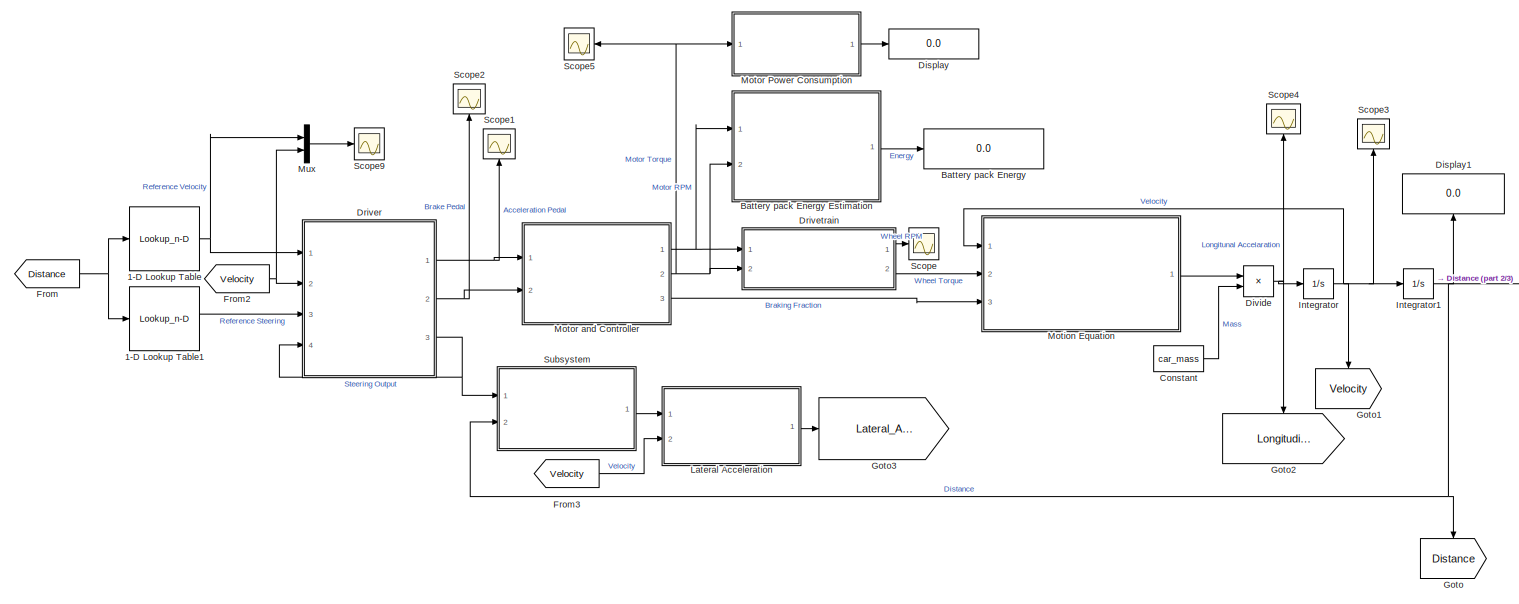
[diagram: root canvas - part 1/3, full width, top band]
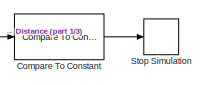
[diagram: root canvas - part 2/3, top right region]
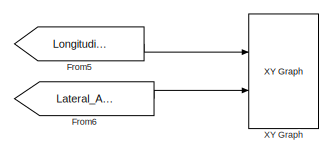
[diagram: root canvas - part 3/3, bottom left region]
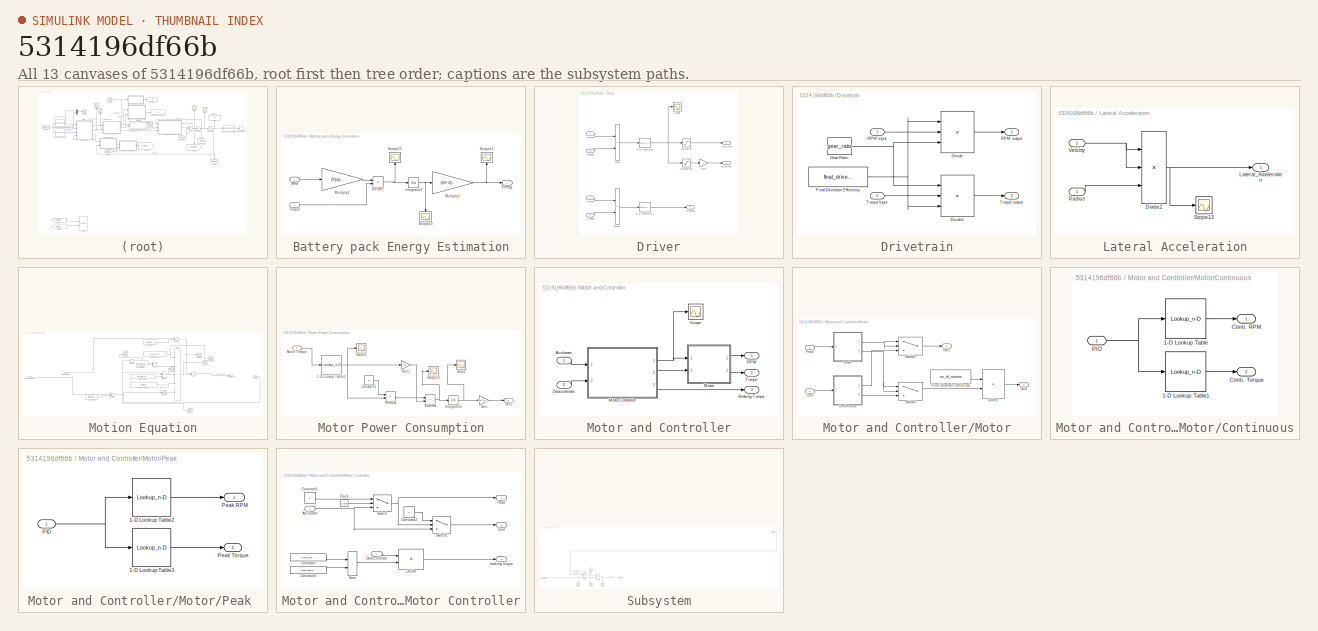
[diagram: thumbnail index - all 13 canvases of the model, root first then tree order]
MODEL slx_5314196df66b
KIND model
CONFIG AbsTol = auto
CONFIG EnableMultiTasking = off
CONFIG FixedStep = 1
CONFIG MaxStep = auto
CONFIG MinStep = auto
CONFIG RelTol = 1e-4
CONFIG SampleTimeConstraint = Unconstrained
CONFIG SolverName = ode45
CONFIG StartTime = 0
CONFIG StopTime = 2500
BLOCK [Lookup_n-D] 1-D Lookup Table
  BreakpointsForDimension1 = distance(1:2:x_leng*no_laps)
  InputPortMap = u0
  InternalRulePriority = Speed
  NumberOfTableDimensions = 1
  Ports = [1, 1]
  RndMeth = Simplest
  Table = achievable_velocity
BLOCK [Lookup_n-D] 1-D Lookup Table1
  BreakpointsForDimension1 = distance(1:x_leng*no_laps)
  InputPortMap = u0
  InternalRulePriority = Speed
  NumberOfTableDimensions = 1
  Ports = [1, 1]
  RndMeth = Simplest
  Table = reference_steering_angle
BLOCK [Display] Battery pack Energy
  Decimation = 1
  Ports = [1]
BLOCK [SubSystem] Battery pack Energy Estimation
  Ports = [2, 1]
  RequestExecContextInheritance = off
BLOCK [Product] Battery pack Energy Estimation/Divide1
  Inputs = **
  Ports = [2, 1]
BLOCK [Outport] Battery pack Energy Estimation/Energy
BLOCK [Integrator] Battery pack Energy Estimation/Integrator2
  Ports = [1, 1]
BLOCK [Gain] Battery pack Energy Estimation/Multiply1
  Gain = (10^-6)/3.6
BLOCK [Gain] Battery pack Energy Estimation/Multiply2
  Gain = (2*pi())/(60)
BLOCK [Inport] Battery pack Energy Estimation/RPM
BLOCK [Scope] Battery pack Energy Estimation/Scope10
  Floating = off
  NameLocation = left
  NumInputPorts = 1
  Ports = [1]
  ScopeSpecificationString = Simulink.scopes.TimeScopeBlockCfg('CurrentConfiguration', extmgr.ConfigurationSet(extmgr.Configuration('Core','General UI',true),extmgr.Configuration('Core','Source UI',true),extmgr.Configuration('Sources','WiredSimulink',true,'DataLoggingVariableName','ScopeData1'),extmgr.Configuration('Visuals','Time Domain',true,'SerializedDisplays',{struct('MinYLimReal','-32543.06706','MaxYLimReal','1337336.17...<+1477ch>
BLOCK [Scope] Battery pack Energy Estimation/Scope11
  Floating = off
  NameLocation = right
  NumInputPorts = 1
  Ports = [1]
  ScopeSpecificationString = Simulink.scopes.TimeScopeBlockCfg('CurrentConfiguration', extmgr.ConfigurationSet(extmgr.Configuration('Core','General UI',true),extmgr.Configuration('Core','Source UI',true),extmgr.Configuration('Sources','WiredSimulink',true,'DataLoggingVariableName','ScopeData2'),extmgr.Configuration('Visuals','Time Domain',true,'SerializedDisplays',{struct('MinYLimReal','-6143.69467','MaxYLimReal','55293.252',...<+1480ch>
BLOCK [Scope] Battery pack Energy Estimation/Scope12
  Floating = off
  NameLocation = right
  NumInputPorts = 1
  Ports = [1]
  ScopeSpecificationString = Simulink.scopes.TimeScopeBlockCfg('CurrentConfiguration', extmgr.ConfigurationSet(extmgr.Configuration('Core','General UI',true),extmgr.Configuration('Core','Source UI',true),extmgr.Configuration('Sources','WiredSimulink',true,'DataLoggingVariableName','ScopeData1'),extmgr.Configuration('Visuals','Time Domain',true,'SerializedDisplays',{struct('MinYLimReal','-0.22951','MaxYLimReal','8.06915','YLab...<+1414ch>
BLOCK [Inport] Battery pack Energy Estimation/Torque
  Port = 2
BLOCK [Reference] Compare To Constant  REF=simulink/Logic and Bit
Operations/Compare
To Constant
  Ports = [1, 1]
  SourceBlock = simulink/Logic and Bit\nOperations/Compare\nTo Constant
  SourceProductBaseCode = SL
  SourceType = Compare To Constant
BLOCK [Constant] Constant
  Value = car_mass
BLOCK [Display] Display
  Decimation = 1
  Ports = [1]
BLOCK [Display] Display1
  Decimation = 5
  NameLocation = right
  Ports = [1]
BLOCK [Product] Divide
  Inputs = */
  Ports = [2, 1]
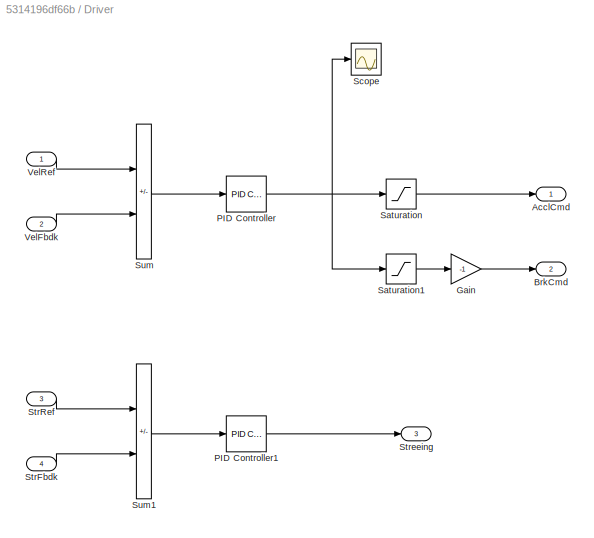
BLOCK [SubSystem] Driver
  Ports = [4, 3]
  RequestExecContextInheritance = off
BLOCK [Outport] Driver/AcclCmd
BLOCK [Outport] Driver/BrkCmd
  Port = 2
BLOCK [Gain] Driver/Gain
  Gain = -1
BLOCK [Reference] Driver/PID Controller  REF=pid_lib/PID Controller
  Ports = [1, 1]
  SourceBlock = pid_lib/PID Controller
  SourceProductBaseCode = SL
  SourceType = PID 1dof
BLOCK [Reference] Driver/PID Controller1  REF=pid_lib/PID Controller
  Ports = [1, 1]
  SourceBlock = pid_lib/PID Controller
  SourceProductBaseCode = SL
  SourceType = PID 1dof
BLOCK [Saturate] Driver/Saturation
  LowerLimit = 0
  UpperLimit = 1
BLOCK [Saturate] Driver/Saturation1
  LowerLimit = -1
  UpperLimit = 0
BLOCK [Scope] Driver/Scope
  Floating = off
  NumInputPorts = 1
  Ports = [1]
  ScopeSpecificationString = Simulink.scopes.TimeScopeBlockCfg('CurrentConfiguration', extmgr.ConfigurationSet(extmgr.Configuration('Core','General UI',true),extmgr.Configuration('Core','Source UI',true),extmgr.Configuration('Sources','WiredSimulink',true,'DataLoggingVariableName','ScopeData1'),extmgr.Configuration('Visuals','Time Domain',true,'SerializedDisplays',{struct('MinYLimReal','-12.73157','MaxYLimReal','26.27363','YL...<+1406ch>
BLOCK [Inport] Driver/StrFbdk
  Port = 4
BLOCK [Inport] Driver/StrRef
  Port = 3
BLOCK [Outport] Driver/Streeing
  Port = 3
BLOCK [Sum] Driver/Sum
  IconShape = rectangular
  Inputs = +-
  Ports = [2, 1]
BLOCK [Sum] Driver/Sum1
  IconShape = rectangular
  Inputs = +-
  Ports = [2, 1]
BLOCK [Inport] Driver/VelFbdk
  Port = 2
BLOCK [Inport] Driver/VelRef
BLOCK [SubSystem] Drivetrain
  Ports = [2, 2]
  RequestExecContextInheritance = off
BLOCK [Product] Drivetrain/Divide
  Inputs = **/
  Ports = [3, 1]
BLOCK [Product] Drivetrain/Divide1
  Inputs = ***
  Ports = [3, 1]
BLOCK [Constant] Drivetrain/Final Drivetrain Efficiency
  Value = final_drivetrain_efficiency
BLOCK [Constant] Drivetrain/Gear Ratio
  Value = gear_ratio
BLOCK [Inport] Drivetrain/RPM Input
BLOCK [Outport] Drivetrain/RPM output
BLOCK [Inport] Drivetrain/Torque Input
  Port = 2
BLOCK [Outport] Drivetrain/Torque output
  Port = 2
BLOCK [From] From
  GotoTag = Distance
BLOCK [From] From2
  GotoTag = Velocity
BLOCK [From] From3
  GotoTag = Velocity
BLOCK [From] From5
  GotoTag = Longitudinal_Acceleration
BLOCK [From] From6
  GotoTag = Lateral_Acceleration
BLOCK [Goto] Goto
  GotoTag = Distance
  NameLocation = right
BLOCK [Goto] Goto1
  GotoTag = Velocity
  NameLocation = right
BLOCK [Goto] Goto2
  GotoTag = Longitudinal_Acceleration
  NameLocation = right
BLOCK [Goto] Goto3
  GotoTag = Lateral_Acceleration
  NameLocation = top
BLOCK [Integrator] Integrator
  Ports = [1, 1]
BLOCK [Integrator] Integrator1
  Ports = [1, 1]
BLOCK [SubSystem] Lateral Acceleration
  Ports = [2, 1]
  RequestExecContextInheritance = off
BLOCK [Product] Lateral Acceleration/Divide2
  Inputs = **/
  Ports = [3, 1]
BLOCK [Outport] Lateral Acceleration/Lateral_Acceleration
BLOCK [Inport] Lateral Acceleration/Radius
BLOCK [Scope] Lateral Acceleration/Scope13
  Floating = off
  NumInputPorts = 1
  Ports = [1]
  ScopeSpecificationString = Simulink.scopes.TimeScopeBlockCfg('CurrentConfiguration', extmgr.ConfigurationSet(extmgr.Configuration('Core','General UI',true),extmgr.Configuration('Core','Source UI',true),extmgr.Configuration('Sources','WiredSimulink',true,'DataLoggingVariableName','ScopeData1'),extmgr.Configuration('Visuals','Time Domain',true,'SerializedDisplays',{struct('MinYLimReal','-16.58585','MaxYLimReal','9.37659','YLa...<+1397ch>
BLOCK [Inport] Lateral Acceleration/Velocity
  Port = 2
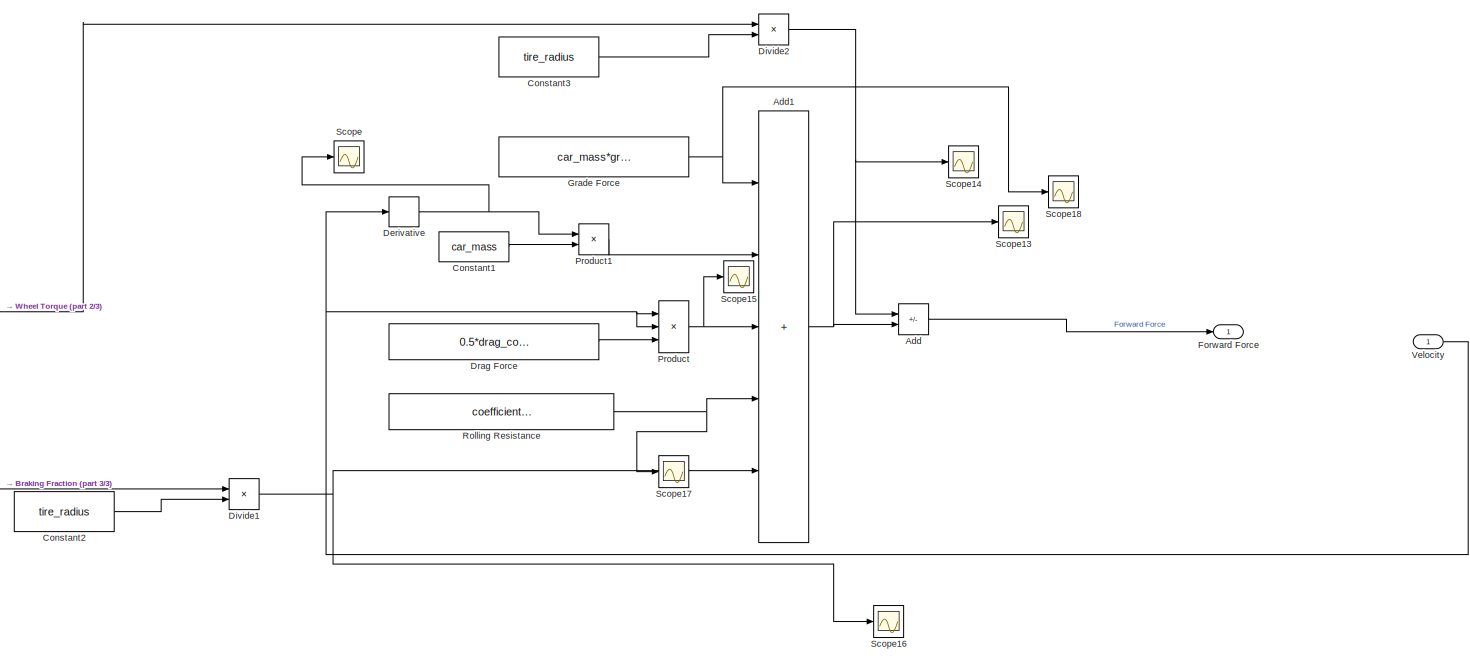
[diagram: Motion Equation - part 1/3, most of the canvas]
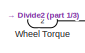
[diagram: Motion Equation - part 2/3, middle left region]
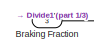
[diagram: Motion Equation - part 3/3, middle left region]
BLOCK [SubSystem] Motion Equation
  Ports = [3, 1]
  RequestExecContextInheritance = off
BLOCK [Sum] Motion Equation/Add
  IconShape = rectangular
  Inputs = +-
  Ports = [2, 1]
BLOCK [Sum] Motion Equation/Add1
  IconShape = rectangular
  Inputs = +++++
  Ports = [5, 1]
BLOCK [Inport] Motion Equation/Braking Fraction
  Port = 3
BLOCK [Constant] Motion Equation/Constant1
  Value = car_mass
BLOCK [Constant] Motion Equation/Constant2
  Value = tire_radius
BLOCK [Constant] Motion Equation/Constant3
  Value = tire_radius
BLOCK [Derivative] Motion Equation/Derivative
BLOCK [Product] Motion Equation/Divide1
  Inputs = */
  Ports = [2, 1]
BLOCK [Product] Motion Equation/Divide2
  Inputs = */
  Ports = [2, 1]
BLOCK [Constant] Motion Equation/Drag Force
  Value = 0.5*drag_coefficient*frontal_area*air_density
BLOCK [Outport] Motion Equation/Forward Force
BLOCK [Constant] Motion Equation/Grade Force
  Value = car_mass*gravity*sin(grade_of_track)
BLOCK [Product] Motion Equation/Product
  Inputs = 3
  Ports = [3, 1]
BLOCK [Product] Motion Equation/Product1
  Ports = [2, 1]
BLOCK [Constant] Motion Equation/Rolling Resistance
  Value = coefficient_rolling_resistance*car_mass*gravity
BLOCK [Scope] Motion Equation/Scope
  Floating = off
  NumInputPorts = 1
  Ports = [1]
  ScopeSpecificationString = Simulink.scopes.TimeScopeBlockCfg('CurrentConfiguration', extmgr.ConfigurationSet(extmgr.Configuration('Core','General UI',true),extmgr.Configuration('Core','Source UI',true),extmgr.Configuration('Sources','WiredSimulink',true,'DataLoggingVariableName','ScopeData11'),extmgr.Configuration('Visuals','Time Domain',true,'SerializedDisplays',{struct('MinYLimReal','-4.98579','MaxYLimReal','3.7784','YLab...<+1395ch>
BLOCK [Scope] Motion Equation/Scope13
  Floating = off
  NumInputPorts = 1
  Ports = [1]
  ScopeSpecificationString = Simulink.scopes.TimeScopeBlockCfg('CurrentConfiguration', extmgr.ConfigurationSet(extmgr.Configuration('Core','General UI',true),extmgr.Configuration('Core','Source UI',true),extmgr.Configuration('Sources','WiredSimulink',true,'DataLoggingVariableName','ScopeData12'),extmgr.Configuration('Visuals','Time Domain',true,'SerializedDisplays',{struct('MinYLimReal','-87.96271','MaxYLimReal','1091.98488',...<+1407ch>
BLOCK [Scope] Motion Equation/Scope14
  Floating = off
  NumInputPorts = 1
  Ports = [1]
  ScopeSpecificationString = Simulink.scopes.TimeScopeBlockCfg('CurrentConfiguration', extmgr.ConfigurationSet(extmgr.Configuration('Core','General UI',true),extmgr.Configuration('Core','Source UI',true),extmgr.Configuration('Sources','WiredSimulink',true,'DataLoggingVariableName','ScopeData13'),extmgr.Configuration('Visuals','Time Domain',true,'SerializedDisplays',{struct('MinYLimReal','-62.40286','MaxYLimReal','1664.8819','...<+1422ch>
BLOCK [Scope] Motion Equation/Scope15
  Floating = off
  NumInputPorts = 1
  Ports = [1]
  ScopeSpecificationString = Simulink.scopes.TimeScopeBlockCfg('CurrentConfiguration', extmgr.ConfigurationSet(extmgr.Configuration('Core','General UI',true),extmgr.Configuration('Core','Source UI',true),extmgr.Configuration('Sources','WiredSimulink',true,'DataLoggingVariableName','ScopeData14'),extmgr.Configuration('Visuals','Time Domain',true,'SerializedDisplays',{struct('MinYLimReal','-9.69617','MaxYLimReal','87.26552','YL...<+1417ch>
BLOCK [Scope] Motion Equation/Scope16
  Floating = off
  NumInputPorts = 1
  Ports = [1]
  ScopeSpecificationString = Simulink.scopes.TimeScopeBlockCfg('CurrentConfiguration', extmgr.ConfigurationSet(extmgr.Configuration('Core','General UI',true),extmgr.Configuration('Core','Source UI',true),extmgr.Configuration('Sources','WiredSimulink',true,'DataLoggingVariableName','ScopeData15'),extmgr.Configuration('Visuals','Time Domain',true,'SerializedDisplays',{struct('MinYLimReal','-13.8218','MaxYLimReal','9.88077','YLa...<+1415ch>
BLOCK [Scope] Motion Equation/Scope17
  Floating = off
  NumInputPorts = 1
  Ports = [1]
  ScopeSpecificationString = Simulink.scopes.TimeScopeBlockCfg('CurrentConfiguration', extmgr.ConfigurationSet(extmgr.Configuration('Core','General UI',true),extmgr.Configuration('Core','Source UI',true),extmgr.Configuration('Sources','WiredSimulink',true,'DataLoggingVariableName','ScopeData16'),extmgr.Configuration('Visuals','Time Domain',true,'SerializedDisplays',{struct('MinYLimReal','45.24011','MaxYLimReal','65.24011','YL...<+1448ch>
BLOCK [Scope] Motion Equation/Scope18
  Floating = off
  NumInputPorts = 1
  Ports = [1]
  ScopeSpecificationString = Simulink.scopes.TimeScopeBlockCfg('CurrentConfiguration', extmgr.ConfigurationSet(extmgr.Configuration('Core','General UI',true),extmgr.Configuration('Core','Source UI',true),extmgr.Configuration('Sources','WiredSimulink',true,'DataLoggingVariableName','ScopeData17'),extmgr.Configuration('Visuals','Time Domain',true,'SerializedDisplays',{struct('MinYLimReal','-13.8218','MaxYLimReal','72.75286','YL...<+1458ch>
BLOCK [Inport] Motion Equation/Velocity
BLOCK [Inport] Motion Equation/Wheel Torque
  Port = 2
BLOCK [SubSystem] Motor Power Consumption
  Ports = [1, 1]
  RequestExecContextInheritance = off
BLOCK [Lookup_n-D] Motor Power Consumption/1-D Lookup Table2
  BreakpointsForDimension1 = peak_torque
  InputPortMap = u0
  InternalRulePriority = Speed
  NumberOfTableDimensions = 1
  Ports = [1, 1]
  RndMeth = Simplest
  Table = current
BLOCK [Constant] Motor Power Consumption/Constant1
  Value = 72
BLOCK [Gain] Motor Power Consumption/Gain
  Gain = (10^-6)/3.6
BLOCK [Gain] Motor Power Consumption/Gain1
  Gain = 0.02
BLOCK [Integrator] Motor Power Consumption/Integrator2
  Ports = [1, 1]
BLOCK [Inport] Motor Power Consumption/Motor Torque
BLOCK [Outport] Motor Power Consumption/Out1
BLOCK [Product] Motor Power Consumption/Product
  Ports = [2, 1]
BLOCK [Scope] Motor Power Consumption/Scope
  Floating = off
  NumInputPorts = 1
  Ports = [1]
  ScopeSpecificationString = Simulink.scopes.TimeScopeBlockCfg('CurrentConfiguration', extmgr.ConfigurationSet(extmgr.Configuration('Core','General UI',true),extmgr.Configuration('Core','Source UI',true),extmgr.Configuration('Sources','WiredSimulink',true,'DataLoggingVariableName','ScopeData1'),extmgr.Configuration('Visuals','Time Domain',true,'SerializedDisplays',{struct('MinYLimReal','-2516640.18967','MaxYLimReal','6000233....<+1487ch>
BLOCK [Scope] Motor Power Consumption/Scope1
  Floating = off
  NumInputPorts = 1
  Ports = [1]
  ScopeSpecificationString = Simulink.scopes.TimeScopeBlockCfg('CurrentConfiguration', extmgr.ConfigurationSet(extmgr.Configuration('Core','General UI',true),extmgr.Configuration('Core','Source UI',true),extmgr.Configuration('Sources','WiredSimulink',true,'DataLoggingVariableName','ScopeData1'),extmgr.Configuration('Visuals','Time Domain',true,'SerializedDisplays',{struct('MinYLimReal','-49.69905','MaxYLimReal','829.33927','Y...<+1482ch>
BLOCK [Scope] Motor Power Consumption/Scope13
  Floating = off
  NumInputPorts = 1
  Ports = [1]
  ScopeSpecificationString = Simulink.scopes.TimeScopeBlockCfg('CurrentConfiguration', extmgr.ConfigurationSet(extmgr.Configuration('Core','General UI',true),extmgr.Configuration('Core','Source UI',true),extmgr.Configuration('Sources','WiredSimulink',true,'DataLoggingVariableName','ScopeData2'),extmgr.Configuration('Visuals','Time Domain',true,'SerializedDisplays',{struct('MinYLimReal','-7162.5553','MaxYLimReal','64462.99773'...<+1443ch>
BLOCK [Sum] Motor Power Consumption/Subtract
  IconShape = rectangular
  Inputs = +-
  Ports = [2, 1]
BLOCK [SubSystem] Motor and Controller
  Ports = [2, 3]
  RequestExecContextInheritance = off
BLOCK [Outport] Motor and Controller/ RPM
BLOCK [Inport] Motor and Controller/Acclerate
BLOCK [Outport] Motor and Controller/Braking Torque
  Port = 3
BLOCK [Inport] Motor and Controller/Deaccelerate
  Port = 2
BLOCK [SubSystem] Motor and Controller/Motor
  Ports = [2, 2]
  RequestExecContextInheritance = off
BLOCK [SubSystem] Motor and Controller/Motor Controller
  Ports = [2, 3]
  RequestExecContextInheritance = off
BLOCK [Inport] Motor and Controller/Motor Controller/Acclerate
BLOCK [Clock] Motor and Controller/Motor Controller/Clock
BLOCK [Constant] Motor and Controller/Motor Controller/Constant
  Value = front_braking_torque
BLOCK [Constant] Motor and Controller/Motor Controller/Constant1
  Value = 0
BLOCK [Constant] Motor and Controller/Motor Controller/Constant2
  Value = 0
BLOCK [Constant] Motor and Controller/Motor Controller/Constant3
  Value = Rear_braking_torque
BLOCK [Outport] Motor and Controller/Motor Controller/Cont
  Port = 2
BLOCK [Inport] Motor and Controller/Motor Controller/Deaccelerate
  Port = 2
BLOCK [Product] Motor and Controller/Motor Controller/Divide
  Inputs = **
  Ports = [2, 1]
BLOCK [Outport] Motor and Controller/Motor Controller/Peak
BLOCK [Sum] Motor and Controller/Motor Controller/Sum
  IconShape = rectangular
  Ports = [2, 1]
BLOCK [Switch] Motor and Controller/Motor Controller/Switch
  InputSameDT = off
  SaturateOnIntegerOverflow = off
  Threshold = start_time_for_peak
BLOCK [Switch] Motor and Controller/Motor Controller/Switch1
  Criteria = u2 ~= 0
  InputSameDT = off
  SaturateOnIntegerOverflow = off
BLOCK [Outport] Motor and Controller/Motor Controller/braking torque
  Port = 3
BLOCK [Inport] Motor and Controller/Motor/Cont
  Port = 2
BLOCK [SubSystem] Motor and Controller/Motor/Continuous
  Ports = [1, 2]
  RequestExecContextInheritance = off
BLOCK [Lookup_n-D] Motor and Controller/Motor/Continuous/1-D Lookup Table
  BreakpointsForDimension1 = conti_PID
  InputPortMap = u0
  InternalRulePriority = Speed
  NumberOfTableDimensions = 1
  Ports = [1, 1]
  RndMeth = Simplest
  Table = conti_rpm
BLOCK [Lookup_n-D] Motor and Controller/Motor/Continuous/1-D Lookup Table1
  BreakpointsForDimension1 = conti_PID
  InputPortMap = u0
  InternalRulePriority = Speed
  NumberOfTableDimensions = 1
  Ports = [1, 1]
  RndMeth = Simplest
  Table = conti_torque
BLOCK [Outport] Motor and Controller/Motor/Continuous/Conti. RPM
BLOCK [Outport] Motor and Controller/Motor/Continuous/Conti. Torque
  Port = 2
BLOCK [Inport] Motor and Controller/Motor/Continuous/PID
BLOCK [Product] Motor and Controller/Motor/Divide2
  Inputs = **
  Ports = [2, 1]
BLOCK [Constant] Motor and Controller/Motor/Final Drivetrain Efficiency1
  Value = no_of_motors
BLOCK [Outport] Motor and Controller/Motor/Out1
BLOCK [Outport] Motor and Controller/Motor/Out2
  Port = 2
BLOCK [Inport] Motor and Controller/Motor/Peak
BLOCK [SubSystem] Motor and Controller/Motor/Peak 
  Ports = [1, 2]
  RequestExecContextInheritance = off
BLOCK [Lookup_n-D] Motor and Controller/Motor/Peak /1-D Lookup Table2
  BreakpointsForDimension1 = peak_PID
  InputPortMap = u0
  InternalRulePriority = Speed
  NumberOfTableDimensions = 1
  Ports = [1, 1]
  RndMeth = Simplest
  Table = peak_rpm
BLOCK [Lookup_n-D] Motor and Controller/Motor/Peak /1-D Lookup Table3
  BreakpointsForDimension1 = peak_PID
  InputPortMap = u0
  InternalRulePriority = Speed
  NumberOfTableDimensions = 1
  Ports = [1, 1]
  RndMeth = Simplest
  Table = peak_torque
BLOCK [Inport] Motor and Controller/Motor/Peak /PID
BLOCK [Outport] Motor and Controller/Motor/Peak /Peak RPM
BLOCK [Outport] Motor and Controller/Motor/Peak /Peak Torque
  Port = 2
BLOCK [Switch] Motor and Controller/Motor/Switch3
  Criteria = u2 > Threshold
  InputSameDT = off
  SaturateOnIntegerOverflow = off
BLOCK [Switch] Motor and Controller/Motor/Switch4
  Criteria = u2 > Threshold
  InputSameDT = off
  SaturateOnIntegerOverflow = off
BLOCK [Scope] Motor and Controller/Scope
  Floating = off
  NumInputPorts = 1
  Ports = [1]
  ScopeSpecificationString = Simulink.scopes.TimeScopeBlockCfg('CurrentConfiguration', extmgr.ConfigurationSet(extmgr.Configuration('Core','General UI',true),extmgr.Configuration('Core','Source UI',true),extmgr.Configuration('Sources','WiredSimulink',true,'DataLoggingVariableName','ScopeData18'),extmgr.Configuration('Visuals','Time Domain',true,'SerializedDisplays',{struct('MinYLimReal','-0.125','MaxYLimReal','1.125','YLabelR...<+1366ch>
BLOCK [Outport] Motor and Controller/Torque
  Port = 2
BLOCK [Mux] Mux
  DisplayOption = bar
  Inputs = 2
  Ports = [2, 1]
BLOCK [Scope] Scope
  Floating = off
  NumInputPorts = 1
  Ports = [1]
  ScopeSpecificationString = Simulink.scopes.TimeScopeBlockCfg('CurrentConfiguration', extmgr.ConfigurationSet(extmgr.Configuration('Core','General UI',true),extmgr.Configuration('Core','Source UI',true),extmgr.Configuration('Sources','WiredSimulink',true,'DataLoggingVariableName','ScopeData3'),extmgr.Configuration('Visuals','Time Domain',true,'SerializedDisplays',{struct('MinYLimReal','-117.44982','MaxYLimReal','1057.04836',...<+1438ch>
BLOCK [Scope] Scope1
  Floating = off
  NameLocation = right
  NumInputPorts = 1
  Ports = [1]
  ScopeSpecificationString = Simulink.scopes.TimeScopeBlockCfg('CurrentConfiguration', extmgr.ConfigurationSet(extmgr.Configuration('Core','General UI',true),extmgr.Configuration('Core','Source UI',true),extmgr.Configuration('Sources','WiredSimulink',true,'DataLoggingVariableName','ScopeData2'),extmgr.Configuration('Visuals','Time Domain',true,'SerializedDisplays',{struct('MinYLimReal','-0.01839','MaxYLimReal','1.04627','YLab...<+1448ch>
BLOCK [Scope] Scope2
  Floating = off
  NameLocation = right
  NumInputPorts = 1
  Ports = [1]
  ScopeSpecificationString = Simulink.scopes.TimeScopeBlockCfg('CurrentConfiguration', extmgr.ConfigurationSet(extmgr.Configuration('Core','General UI',true),extmgr.Configuration('Core','Source UI',true),extmgr.Configuration('Sources','WiredSimulink',true,'DataLoggingVariableName','ScopeData3'),extmgr.Configuration('Visuals','Time Domain',true,'SerializedDisplays',{struct('MinYLimReal','-0.125','MaxYLimReal','1.125','YLabelRe...<+1454ch>
BLOCK [Scope] Scope3
  Floating = off
  NameLocation = right
  NumInputPorts = 1
  Ports = [1]
  ScopeSpecificationString = Simulink.scopes.TimeScopeBlockCfg('CurrentConfiguration', extmgr.ConfigurationSet(extmgr.Configuration('Core','General UI',true),extmgr.Configuration('Core','Source UI',true),extmgr.Configuration('Sources','WiredSimulink',true,'DataLoggingVariableName','ScopeData4'),extmgr.Configuration('Visuals','Time Domain',true,'SerializedDisplays',{struct('MinYLimReal','-3.18987','MaxYLimReal','28.70881','YLa...<+1767ch>
BLOCK [Scope] Scope4
  Floating = off
  NameLocation = right
  NumInputPorts = 1
  Ports = [1]
  ScopeSpecificationString = Simulink.scopes.TimeScopeBlockCfg('CurrentConfiguration', extmgr.ConfigurationSet(extmgr.Configuration('Core','General UI',true),extmgr.Configuration('Core','Source UI',true),extmgr.Configuration('Sources','WiredSimulink',true,'DataLoggingVariableName','ScopeData5'),extmgr.Configuration('Visuals','Time Domain',true,'SerializedDisplays',{struct('MinYLimReal','-5.15316','MaxYLimReal','8.31327','YLab...<+1478ch>
BLOCK [Scope] Scope5
  Floating = off
  NameLocation = top
  NumInputPorts = 1
  Ports = [1]
  ScopeSpecificationString = Simulink.scopes.TimeScopeBlockCfg('CurrentConfiguration', extmgr.ConfigurationSet(extmgr.Configuration('Core','General UI',true),extmgr.Configuration('Core','Source UI',true),extmgr.Configuration('Sources','WiredSimulink',true,'DataLoggingVariableName','ScopeData5'),extmgr.Configuration('Visuals','Time Domain',true,'SerializedDisplays',{struct('MinYLimReal','-12.60373','MaxYLimReal','138.56823','Y...<+1452ch>
BLOCK [Scope] Scope9
  Floating = off
  NumInputPorts = 1
  Ports = [1]
  ScopeSpecificationString = Simulink.scopes.TimeScopeBlockCfg('CurrentConfiguration', extmgr.ConfigurationSet(extmgr.Configuration('Core','General UI',true),extmgr.Configuration('Core','Source UI',true),extmgr.Configuration('Sources','WiredSimulink',true,'DataLoggingVariableName','ScopeData10'),extmgr.Configuration('Visuals','Time Domain',true,'SerializedDisplays',{struct('MinYLimReal','-3.21149','MaxYLimReal','26.23603','YL...<+1835ch>
BLOCK [Stop] Stop Simulation
BLOCK [SubSystem] Subsystem
  Ports = [2, 1]
  RequestExecContextInheritance = off
BLOCK [Delay] Subsystem/Delay
  DelayLength = 1
  InputPortMap = u0
  Ports = [1, 1]
BLOCK [Inport] Subsystem/Distance
  Port = 2
BLOCK [Product] Subsystem/Divide1
  Inputs = */
  Ports = [2, 1]
BLOCK [Gain] Subsystem/Gain
  Gain = steering_ratio*pi/180
BLOCK [Outport] Subsystem/Radius
BLOCK [Scope] Subsystem/Scope14
  Floating = off
  NameLocation = right
  NumInputPorts = 1
  Ports = [1]
  ScopeSpecificationString = Simulink.scopes.TimeScopeBlockCfg('CurrentConfiguration', extmgr.ConfigurationSet(extmgr.Configuration('Core','General UI',true),extmgr.Configuration('Core','Source UI',true),extmgr.Configuration('Sources','WiredSimulink',true,'DataLoggingVariableName','ScopeData2'),extmgr.Configuration('Visuals','Time Domain',true,'SerializedDisplays',{struct('MinYLimReal','-126.61658','MaxYLimReal','14.06851','Y...<+1425ch>
BLOCK [Scope] Subsystem/Scope15
  Floating = off
  NameLocation = left
  NumInputPorts = 1
  Ports = [1]
  ScopeSpecificationString = Simulink.scopes.TimeScopeBlockCfg('CurrentConfiguration', extmgr.ConfigurationSet(extmgr.Configuration('Core','General UI',true),extmgr.Configuration('Core','Source UI',true),extmgr.Configuration('Sources','WiredSimulink',true,'DataLoggingVariableName','ScopeData3'),extmgr.Configuration('Visuals','Time Domain',true,'SerializedDisplays',{struct('MinYLimReal','-228372543041812.625','MaxYLimReal','18...<+1510ch>
BLOCK [Scope] Subsystem/Scope16
  Floating = off
  NameLocation = left
  NumInputPorts = 1
  Ports = [1]
  ScopeSpecificationString = Simulink.scopes.TimeScopeBlockCfg('CurrentConfiguration', extmgr.ConfigurationSet(extmgr.Configuration('Core','General UI',true),extmgr.Configuration('Core','Source UI',true),extmgr.Configuration('Sources','WiredSimulink',true,'DataLoggingVariableName','ScopeData4'),extmgr.Configuration('Visuals','Time Domain',true,'SerializedDisplays',{struct('MinYLimReal','-57.39563','MaxYLimReal','75.30712','YL...<+1419ch>
BLOCK [Scope] Subsystem/Scope17
  Floating = off
  NameLocation = left
  NumInputPorts = 1
  Ports = [1]
  ScopeSpecificationString = Simulink.scopes.TimeScopeBlockCfg('CurrentConfiguration', extmgr.ConfigurationSet(extmgr.Configuration('Core','General UI',true),extmgr.Configuration('Core','Source UI',true),extmgr.Configuration('Sources','WiredSimulink',true,'DataLoggingVariableName','ScopeData5'),extmgr.Configuration('Visuals','Time Domain',true,'SerializedDisplays',{struct('MinYLimReal','-200.88471','MaxYLimReal','263.57492','...<+1423ch>
BLOCK [Inport] Subsystem/Steering Output
BLOCK [Sum] Subsystem/Subtract
  IconShape = rectangular
  Inputs = +-
  Ports = [2, 1]
BLOCK [Reference] XY Graph  REF=simulink/Sinks/XY Graph
  Ports = [2]
  SourceBlock = simulink/Sinks/XY Graph
  SourceProductBaseCode = SL
  SourceType = XY scope.
LINE 1-D Lookup Table1:1 -> Driver:3
NET 1-D Lookup Table:1 -> Driver:1, Mux:1
NET Battery pack Energy Estimation/Divide1:1 -> Battery pack Energy Estimation/Integrator2:1, Battery pack Energy Estimation/Scope11:1
NET Battery pack Energy Estimation/Integrator2:1 -> Battery pack Energy Estimation/Multiply1:1, Battery pack Energy Estimation/Scope10:1
NET Battery pack Energy Estimation/Multiply1:1 -> Battery pack Energy Estimation/Energy:1, Battery pack Energy Estimation/Scope12:1
LINE Battery pack Energy Estimation/Multiply2:1 -> Battery pack Energy Estimation/Divide1:1
LINE Battery pack Energy Estimation/RPM:1 -> Battery pack Energy Estimation/Multiply2:1
LINE Battery pack Energy Estimation/Torque:1 -> Battery pack Energy Estimation/Divide1:2
LINE Battery pack Energy Estimation:1 -> Battery pack Energy:1
LINE Compare To Constant:1 -> Stop Simulation:1
LINE Constant:1 -> Divide:2
NET Divide:1 -> Goto2:1, Integrator:1, Scope4:1
LINE Driver/Gain:1 -> Driver/BrkCmd:1
LINE Driver/PID Controller1:1 -> Driver/Streeing:1
NET Driver/PID Controller:1 -> Driver/Saturation1:1, Driver/Saturation:1, Driver/Scope:1
LINE Driver/Saturation1:1 -> Driver/Gain:1
LINE Driver/Saturation:1 -> Driver/AcclCmd:1
LINE Driver/StrFbdk:1 -> Driver/Sum1:2
LINE Driver/StrRef:1 -> Driver/Sum1:1
LINE Driver/Sum1:1 -> Driver/PID Controller1:1
LINE Driver/Sum:1 -> Driver/PID Controller:1
LINE Driver/VelFbdk:1 -> Driver/Sum:2
LINE Driver/VelRef:1 -> Driver/Sum:1
NET Driver:1 -> Motor and Controller:1, Scope1:1
NET Driver:2 -> Motor and Controller:2, Scope2:1
NET Driver:3 -> Driver:4, Subsystem:1
LINE Drivetrain/Divide1:1 -> Drivetrain/Torque output:1
LINE Drivetrain/Divide:1 -> Drivetrain/RPM output:1
NET Drivetrain/Final Drivetrain Efficiency:1 -> Drivetrain/Divide1:3, Drivetrain/Divide:1
NET Drivetrain/Gear Ratio:1 -> Drivetrain/Divide1:1, Drivetrain/Divide:3
LINE Drivetrain/RPM Input:1 -> Drivetrain/Divide:2
LINE Drivetrain/Torque Input:1 -> Drivetrain/Divide1:2
LINE Drivetrain:1 -> Scope:1
LINE Drivetrain:2 -> Motion Equation:2
NET From2:1 -> Driver:2, Mux:2
LINE From3:1 -> Lateral Acceleration:2
LINE From5:1 -> XY Graph:1
LINE From6:1 -> XY Graph:2
NET From:1 -> 1-D Lookup Table1:1, 1-D Lookup Table:1
NET Integrator1:1 -> Compare To Constant:1, Display1:1, Goto:1, Subsystem:2
NET Integrator:1 -> Goto1:1, Integrator1:1, Motion Equation:1, Scope3:1
NET Lateral Acceleration/Divide2:1 -> Lateral Acceleration/Lateral_Acceleration:1, Lateral Acceleration/Scope13:1
LINE Lateral Acceleration/Radius:1 -> Lateral Acceleration/Divide2:3
NET Lateral Acceleration/Velocity:1 -> Lateral Acceleration/Divide2:1, Lateral Acceleration/Divide2:2
LINE Lateral Acceleration:1 -> Goto3:1
NET Motion Equation/Add1:1 -> Motion Equation/Add:2, Motion Equation/Scope13:1
LINE Motion Equation/Add:1 -> Motion Equation/Forward Force:1
LINE Motion Equation/Braking Fraction:1 -> Motion Equation/Divide1:1
LINE Motion Equation/Constant1:1 -> Motion Equation/Product1:2
LINE Motion Equation/Constant2:1 -> Motion Equation/Divide1:2
LINE Motion Equation/Constant3:1 -> Motion Equation/Divide2:2
NET Motion Equation/Derivative:1 -> Motion Equation/Product1:1, Motion Equation/Scope:1
NET Motion Equation/Divide1:1 -> Motion Equation/Add1:5, Motion Equation/Scope16:1
NET Motion Equation/Divide2:1 -> Motion Equation/Add:1, Motion Equation/Scope14:1
LINE Motion Equation/Drag Force:1 -> Motion Equation/Product:3
NET Motion Equation/Grade Force:1 -> Motion Equation/Add1:1, Motion Equation/Scope18:1
LINE Motion Equation/Product1:1 -> Motion Equation/Add1:2
NET Motion Equation/Product:1 -> Motion Equation/Add1:3, Motion Equation/Scope15:1
NET Motion Equation/Rolling Resistance:1 -> Motion Equation/Add1:4, Motion Equation/Scope17:1
NET Motion Equation/Velocity:1 -> Motion Equation/Derivative:1, Motion Equation/Product:1, Motion Equation/Product:2
LINE Motion Equation/Wheel Torque:1 -> Motion Equation/Divide2:1
LINE Motion Equation:1 -> Divide:1
NET Motor Power Consumption/1-D Lookup Table2:1 -> Motor Power Consumption/Gain1:1, Motor Power Consumption/Product:2, Motor Power Consumption/Scope1:1
LINE Motor Power Consumption/Constant1:1 -> Motor Power Consumption/Product:1
LINE Motor Power Consumption/Gain1:1 -> Motor Power Consumption/Subtract:2
LINE Motor Power Consumption/Gain:1 -> Motor Power Consumption/Out1:1
NET Motor Power Consumption/Integrator2:1 -> Motor Power Consumption/Gain:1, Motor Power Consumption/Scope:1
LINE Motor Power Consumption/Motor Torque:1 -> Motor Power Consumption/1-D Lookup Table2:1
LINE Motor Power Consumption/Product:1 -> Motor Power Consumption/Subtract:1
NET Motor Power Consumption/Subtract:1 -> Motor Power Consumption/Integrator2:1, Motor Power Consumption/Scope13:1
LINE Motor Power Consumption:1 -> Display:1
LINE Motor and Controller/Acclerate:1 -> Motor and Controller/Motor Controller:1
LINE Motor and Controller/Deaccelerate:1 -> Motor and Controller/Motor Controller:2
NET Motor and Controller/Motor Controller/Acclerate:1 -> Motor and Controller/Motor Controller/Switch1:3, Motor and Controller/Motor Controller/Switch:3
LINE Motor and Controller/Motor Controller/Clock:1 -> Motor and Controller/Motor Controller/Switch:2
LINE Motor and Controller/Motor Controller/Constant1:1 -> Motor and Controller/Motor Controller/Switch:1
LINE Motor and Controller/Motor Controller/Constant2:1 -> Motor and Controller/Motor Controller/Switch1:1
LINE Motor and Controller/Motor Controller/Constant3:1 -> Motor and Controller/Motor Controller/Sum:2
LINE Motor and Controller/Motor Controller/Constant:1 -> Motor and Controller/Motor Controller/Sum:1
LINE Motor and Controller/Motor Controller/Deaccelerate:1 -> Motor and Controller/Motor Controller/Divide:1
LINE Motor and Controller/Motor Controller/Divide:1 -> Motor and Controller/Motor Controller/braking torque:1
LINE Motor and Controller/Motor Controller/Sum:1 -> Motor and Controller/Motor Controller/Divide:2
LINE Motor and Controller/Motor Controller/Switch1:1 -> Motor and Controller/Motor Controller/Cont:1
NET Motor and Controller/Motor Controller/Switch:1 -> Motor and Controller/Motor Controller/Peak:1, Motor and Controller/Motor Controller/Switch1:2
NET Motor and Controller/Motor Controller:1 -> Motor and Controller/Motor:1, Motor and Controller/Scope:1
LINE Motor and Controller/Motor Controller:2 -> Motor and Controller/Motor:2
LINE Motor and Controller/Motor Controller:3 -> Motor and Controller/Braking Torque:1
LINE Motor and Controller/Motor/Cont:1 -> Motor and Controller/Motor/Continuous:1
LINE Motor and Controller/Motor/Continuous/1-D Lookup Table1:1 -> Motor and Controller/Motor/Continuous/Conti. Torque:1
LINE Motor and Controller/Motor/Continuous/1-D Lookup Table:1 -> Motor and Controller/Motor/Continuous/Conti. RPM:1
NET Motor and Controller/Motor/Continuous/PID:1 -> Motor and Controller/Motor/Continuous/1-D Lookup Table1:1, Motor and Controller/Motor/Continuous/1-D Lookup Table:1
LINE Motor and Controller/Motor/Continuous:1 -> Motor and Controller/Motor/Switch3:3
LINE Motor and Controller/Motor/Continuous:2 -> Motor and Controller/Motor/Switch4:3
LINE Motor and Controller/Motor/Divide2:1 -> Motor and Controller/Motor/Out2:1
LINE Motor and Controller/Motor/Final Drivetrain Efficiency1:1 -> Motor and Controller/Motor/Divide2:1
LINE Motor and Controller/Motor/Peak /1-D Lookup Table2:1 -> Motor and Controller/Motor/Peak /Peak RPM:1
LINE Motor and Controller/Motor/Peak /1-D Lookup Table3:1 -> Motor and Controller/Motor/Peak /Peak Torque:1
NET Motor and Controller/Motor/Peak /PID:1 -> Motor and Controller/Motor/Peak /1-D Lookup Table2:1, Motor and Controller/Motor/Peak /1-D Lookup Table3:1
NET Motor and Controller/Motor/Peak :1 -> Motor and Controller/Motor/Switch3:1, Motor and Controller/Motor/Switch3:2
NET Motor and Controller/Motor/Peak :2 -> Motor and Controller/Motor/Switch4:1, Motor and Controller/Motor/Switch4:2
LINE Motor and Controller/Motor/Peak:1 -> Motor and Controller/Motor/Peak :1
LINE Motor and Controller/Motor/Switch3:1 -> Motor and Controller/Motor/Out1:1
LINE Motor and Controller/Motor/Switch4:1 -> Motor and Controller/Motor/Divide2:2
LINE Motor and Controller/Motor:1 -> Motor and Controller/ RPM:1
LINE Motor and Controller/Motor:2 -> Motor and Controller/Torque:1
NET Motor and Controller:1 -> Battery pack Energy Estimation:1, Drivetrain:1
NET Motor and Controller:2 -> Battery pack Energy Estimation:2, Drivetrain:2, Motor Power Consumption:1, Scope5:1
LINE Motor and Controller:3 -> Motion Equation:3
LINE Mux:1 -> Scope9:1
LINE Subsystem/Delay:1 -> Subsystem/Subtract:1
NET Subsystem/Distance:1 -> Subsystem/Delay:1, Subsystem/Subtract:2
NET Subsystem/Divide1:1 -> Subsystem/Radius:1, Subsystem/Scope15:1
NET Subsystem/Gain:1 -> Subsystem/Divide1:2, Subsystem/Scope17:1
NET Subsystem/Steering Output:1 -> Subsystem/Gain:1, Subsystem/Scope16:1
NET Subsystem/Subtract:1 -> Subsystem/Divide1:1, Subsystem/Scope14:1
LINE Subsystem:1 -> Lateral Acceleration:1
note: NET lines group one-source signal fan-out (src -> all destinations, sorted); 1:1 wires keep LINE
